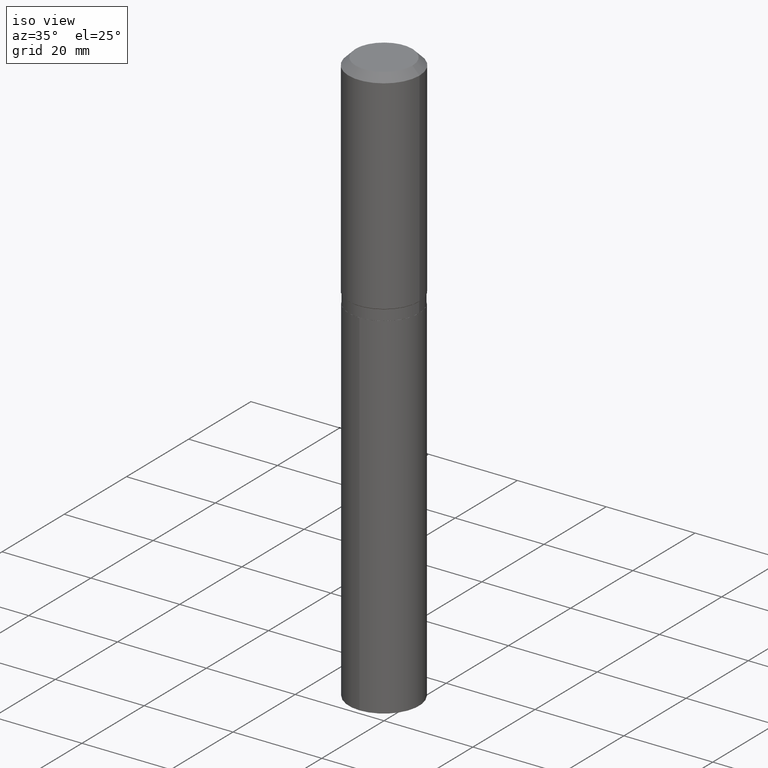
[diagram: clean part render]
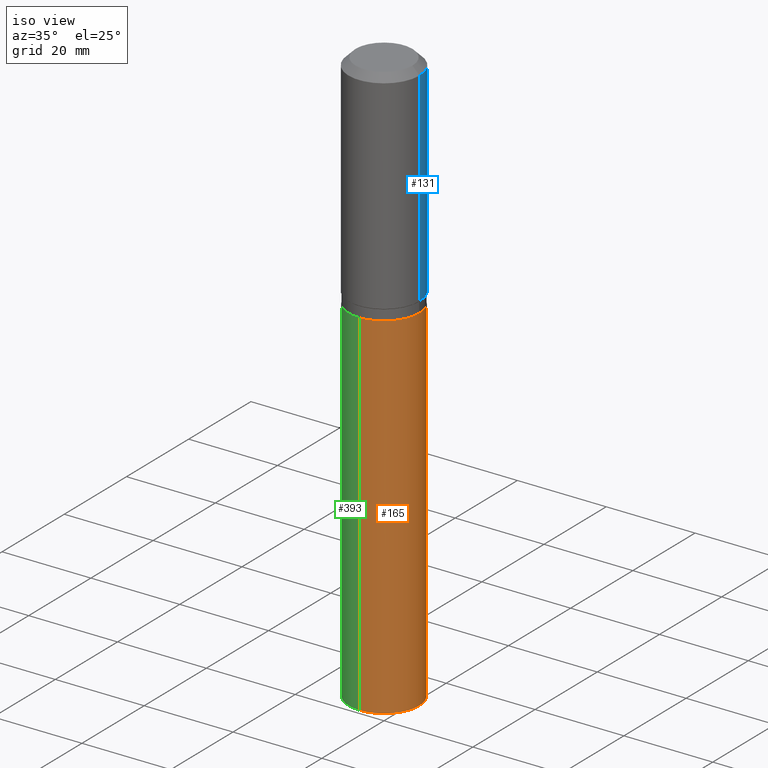
[diagram: same view with three faces highlighted in distinct colors, each labeled with its STEP entity id]
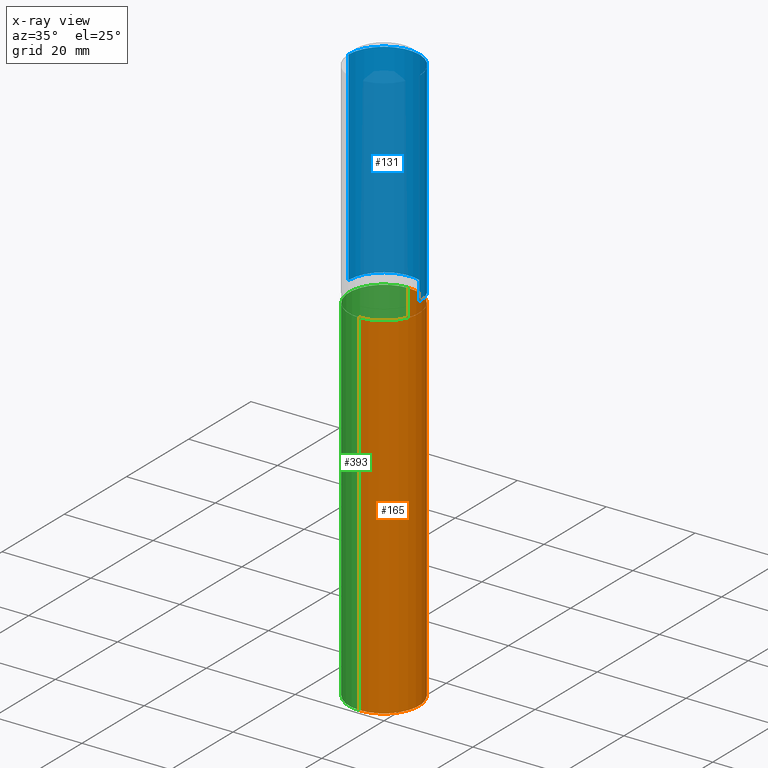
[diagram: x-ray of the same camera — body ghosted, the three highlighted faces saturated]
A machine part, iso view with three faces highlighted in distinct colors.
The next image is the same camera in x-ray (body ghosted, the three faces saturated) — at least one of them is partly hidden behind the body in this view.
Their STEP definitions:

[orange] entity #165 — the highlighted cylindrical surface (partial cylindrical patch) has radius 7.9007 mm, axis along (-0, 0, 1).
#30 = ORIENTED_EDGE ( 'NONE', *, *, #144, .T. ) ;
#38 = VERTEX_POINT ( 'NONE', #134 ) ;
#46 = EDGE_CURVE ( 'NONE', #38, #117, #318, .T. ) ;
#48 = DIRECTION ( 'NONE',  ( -2.445324435619551489E-29, 3.491688085710125580E-15, 1.000000000000000000 ) ) ;
#61 = CARTESIAN_POINT ( 'NONE',  ( -2.172050540894265111E-15, -0.3110500000000069321, -1.968299999999998162 ) ) ;
#69 = CARTESIAN_POINT ( 'NONE',  ( 4.813416251214202584E-29, -6.872282719244960739E-15, -1.968299999999999272 ) ) ;
#78 = ORIENTED_EDGE ( 'NONE', *, *, #460, .T. ) ;
#100 = CARTESIAN_POINT ( 'NONE',  ( 1.250438744607617227E-28, -1.785424981427193522E-14, -5.113474146559972233 ) ) ;
#103 = EDGE_LOOP ( 'NONE', ( #30, #78, #366, #319 ) ) ;
#111 = VECTOR ( 'NONE', #313, 39.37007874015748143 ) ;
#117 = VERTEX_POINT ( 'NONE', #321 ) ;
#134 = CARTESIAN_POINT ( 'NONE',  ( -2.172050540894188197E-15, -0.3110500000000178678, -5.113474146559971345 ) ) ;
#144 = EDGE_CURVE ( 'NONE', #38, #369, #204, .T. ) ;
#165 = ADVANCED_FACE ( 'NONE', ( #439 ), #258, .T. ) ;
#180 = VECTOR ( 'NONE', #383, 39.37007874015748143 ) ;
#200 = CARTESIAN_POINT ( 'NONE',  ( 2.210143179581839306E-15, 0.3110499999999931098, -1.968300000000000383 ) ) ;
#203 = VERTEX_POINT ( 'NONE', #367 ) ;
#204 = CIRCLE ( 'NONE', #228, 0.3110499999999999932 ) ;
#221 = DIRECTION ( 'NONE',  ( -2.445324435619551489E-29, 3.491688085710125580E-15, 1.000000000000000000 ) ) ;
#227 = DIRECTION ( 'NONE',  ( -6.982962677686266711E-15, -1.000000000000000000, 3.513066058401238903E-15 ) ) ;
#228 = AXIS2_PLACEMENT_3D ( 'NONE', #100, #245, #395 ) ;
#235 = LINE ( 'NONE', #200, #180 ) ;
#245 = DIRECTION ( 'NONE',  ( -2.445324435619551489E-29, 3.491688085710125580E-15, 1.000000000000000000 ) ) ;
#258 = CYLINDRICAL_SURFACE ( 'NONE', #423, 0.3110499999999999932 ) ;
#260 = CIRCLE ( 'NONE', #324, 0.3110499999999999932 ) ;
#303 = EDGE_CURVE ( 'NONE', #117, #203, #260, .T. ) ;
#313 = DIRECTION ( 'NONE',  ( -2.445324435619551208E-29, 3.491688085710125580E-15, 1.000000000000000000 ) ) ;
#318 = LINE ( 'NONE', #61, #111 ) ;
#319 = ORIENTED_EDGE ( 'NONE', *, *, #46, .F. ) ;
#321 = CARTESIAN_POINT ( 'NONE',  ( -2.172050540894265111E-15, -0.3110500000000069321, -1.968299999999998162 ) ) ;
#324 = AXIS2_PLACEMENT_3D ( 'NONE', #420, #48, #343 ) ;
#343 = DIRECTION ( 'NONE',  ( -6.982962677686266711E-15, -1.000000000000000000, 3.513066058401238903E-15 ) ) ;
#366 = ORIENTED_EDGE ( 'NONE', *, *, #303, .F. ) ;
#367 = CARTESIAN_POINT ( 'NONE',  ( 2.210143179581916614E-15, 0.3110499999999931098, -1.968300000000000383 ) ) ;
#369 = VERTEX_POINT ( 'NONE', #376 ) ;
#376 = CARTESIAN_POINT ( 'NONE',  ( 2.210143179581917008E-15, 0.3110499999999822851, -5.113474146559974010 ) ) ;
#383 = DIRECTION ( 'NONE',  ( -2.445324435619551208E-29, 3.491688085710125580E-15, 1.000000000000000000 ) ) ;
#395 = DIRECTION ( 'NONE',  ( -6.982962677686266711E-15, -1.000000000000000000, 3.513066058401238903E-15 ) ) ;
#420 = CARTESIAN_POINT ( 'NONE',  ( 4.813416251214202584E-29, -6.872282719244960739E-15, -1.968299999999999272 ) ) ;
#423 = AXIS2_PLACEMENT_3D ( 'NONE', #69, #221, #227 ) ;
#439 = FACE_OUTER_BOUND ( 'NONE', #103, .T. ) ;
#460 = EDGE_CURVE ( 'NONE', #369, #203, #235, .T. ) ;

[blue] entity #131 — the highlighted cylindrical surface (partial cylindrical patch) has radius 7.9997 mm, axis along (-0, 0, 1).
#5 = LINE ( 'NONE', #118, #153 ) ;
#40 = AXIS2_PLACEMENT_3D ( 'NONE', #444, #489, #104 ) ;
#57 = EDGE_LOOP ( 'NONE', ( #142, #59, #105, #146 ) ) ;
#59 = ORIENTED_EDGE ( 'NONE', *, *, #396, .T. ) ;
#79 = CIRCLE ( 'NONE', #128, 0.3149500000000000077 ) ;
#80 = DIRECTION ( 'NONE',  ( -2.445468806185136877E-29, 3.491481338843145188E-15, 1.000000000000000000 ) ) ;
#83 = CARTESIAN_POINT ( 'NONE',  ( 0.3149500000000002298, -8.731147384045044792E-15, -1.870799999999999352 ) ) ;
#97 = CARTESIAN_POINT ( 'NONE',  ( 0.3149500000000001743, -2.199284095337290660E-15, 1.535751875536930690E-29 ) ) ;
#102 = DIRECTION ( 'NONE',  ( 1.000000000000000000, -6.982962677686266711E-15, 0.000000000000000000 ) ) ;
#104 = DIRECTION ( 'NONE',  ( 1.000000000000000000, -6.982962677686264344E-15, 0.000000000000000000 ) ) ;
#105 = ORIENTED_EDGE ( 'NONE', *, *, #198, .F. ) ;
#112 = VECTOR ( 'NONE', #320, 39.37007874015748143 ) ;
#118 = CARTESIAN_POINT ( 'NONE',  ( -0.3149500000000001743, 2.237854346276436774E-15, -1.549218606675783237E-29 ) ) ;
#128 = AXIS2_PLACEMENT_3D ( 'NONE', #326, #373, #102 ) ;
#131 = ADVANCED_FACE ( 'NONE', ( #279 ), #136, .T. ) ;
#136 = CYLINDRICAL_SURFACE ( 'NONE', #172, 0.3149500000000001743 ) ;
#142 = ORIENTED_EDGE ( 'NONE', *, *, #274, .T. ) ;
#146 = ORIENTED_EDGE ( 'NONE', *, *, #422, .F. ) ;
#153 = VECTOR ( 'NONE', #80, 39.37007874015748143 ) ;
#172 = AXIS2_PLACEMENT_3D ( 'NONE', #428, #287, #477 ) ;
#177 = LINE ( 'NONE', #97, #112 ) ;
#198 = EDGE_CURVE ( 'NONE', #340, #394, #79, .T. ) ;
#255 = CIRCLE ( 'NONE', #40, 0.3149500000000002298 ) ;
#265 = VERTEX_POINT ( 'NONE', #334 ) ;
#274 = EDGE_CURVE ( 'NONE', #475, #265, #255, .T. ) ;
#279 = FACE_OUTER_BOUND ( 'NONE', #57, .T. ) ;
#287 = DIRECTION ( 'NONE',  ( -2.445468806185136597E-29, 3.491481338843145583E-15, 1.000000000000000000 ) ) ;
#320 = DIRECTION ( 'NONE',  ( -2.445468806185136877E-29, 3.491481338843145188E-15, 1.000000000000000000 ) ) ;
#326 = CARTESIAN_POINT ( 'NONE',  ( 1.540400801016026329E-30, -2.199284095337310135E-16, -0.06299000000000036514 ) ) ;
#334 = CARTESIAN_POINT ( 'NONE',  ( -0.3149500000000002298, -4.294008942431317359E-15, -1.870799999999999352 ) ) ;
#340 = VERTEX_POINT ( 'NONE', #344 ) ;
#341 = CARTESIAN_POINT ( 'NONE',  ( -0.3149500000000000077, -1.138041502844306206E-15, -0.06299000000000036514 ) ) ;
#344 = CARTESIAN_POINT ( 'NONE',  ( 0.3149500000000000077, -2.419212504871020909E-15, -0.06299000000000036514 ) ) ;
#373 = DIRECTION ( 'NONE',  ( -2.445468806185136597E-29, 3.491481338843145583E-15, 1.000000000000000000 ) ) ;
#394 = VERTEX_POINT ( 'NONE', #341 ) ;
#396 = EDGE_CURVE ( 'NONE', #265, #394, #5, .T. ) ;
#422 = EDGE_CURVE ( 'NONE', #475, #340, #177, .T. ) ;
#428 = CARTESIAN_POINT ( 'NONE',  ( 0.000000000000000000, 0.000000000000000000, 0.000000000000000000 ) ) ;
#444 = CARTESIAN_POINT ( 'NONE',  ( 4.574983042611151699E-29, -6.531863288707754922E-15, -1.870799999999999352 ) ) ;
#475 = VERTEX_POINT ( 'NONE', #83 ) ;
#477 = DIRECTION ( 'NONE',  ( 1.000000000000000000, -6.982962677686265922E-15, 4.876176775795935232E-29 ) ) ;
#489 = DIRECTION ( 'NONE',  ( -2.445468806185136597E-29, 3.491481338843145583E-15, 1.000000000000000000 ) ) ;

[green] entity #393 — the highlighted cylindrical surface (partial cylindrical patch) has radius 7.9007 mm, axis along (-0, 0, 1).
#26 = DIRECTION ( 'NONE',  ( -2.445324435619551489E-29, 3.491688085710125580E-15, 1.000000000000000000 ) ) ;
#31 = AXIS2_PLACEMENT_3D ( 'NONE', #65, #26, #403 ) ;
#38 = VERTEX_POINT ( 'NONE', #134 ) ;
#46 = EDGE_CURVE ( 'NONE', #38, #117, #318, .T. ) ;
#50 = AXIS2_PLACEMENT_3D ( 'NONE', #85, #346, #154 ) ;
#61 = CARTESIAN_POINT ( 'NONE',  ( -2.172050540894265111E-15, -0.3110500000000069321, -1.968299999999998162 ) ) ;
#65 = CARTESIAN_POINT ( 'NONE',  ( 4.813416251214202584E-29, -6.872282719244960739E-15, -1.968299999999999272 ) ) ;
#70 = ORIENTED_EDGE ( 'NONE', *, *, #168, .F. ) ;
#76 = FACE_OUTER_BOUND ( 'NONE', #114, .T. ) ;
#85 = CARTESIAN_POINT ( 'NONE',  ( 1.250438744607617227E-28, -1.785424981427193522E-14, -5.113474146559972233 ) ) ;
#111 = VECTOR ( 'NONE', #313, 39.37007874015748143 ) ;
#114 = EDGE_LOOP ( 'NONE', ( #429, #229, #371, #70 ) ) ;
#117 = VERTEX_POINT ( 'NONE', #321 ) ;
#130 = AXIS2_PLACEMENT_3D ( 'NONE', #233, #378, #196 ) ;
#134 = CARTESIAN_POINT ( 'NONE',  ( -2.172050540894188197E-15, -0.3110500000000178678, -5.113474146559971345 ) ) ;
#154 = DIRECTION ( 'NONE',  ( -6.982962677686266711E-15, -1.000000000000000000, 3.513066058401238903E-15 ) ) ;
#168 = EDGE_CURVE ( 'NONE', #203, #117, #286, .T. ) ;
#180 = VECTOR ( 'NONE', #383, 39.37007874015748143 ) ;
#196 = DIRECTION ( 'NONE',  ( -6.982962677686266711E-15, -1.000000000000000000, 3.513066058401238903E-15 ) ) ;
#200 = CARTESIAN_POINT ( 'NONE',  ( 2.210143179581839306E-15, 0.3110499999999931098, -1.968300000000000383 ) ) ;
#203 = VERTEX_POINT ( 'NONE', #367 ) ;
#229 = ORIENTED_EDGE ( 'NONE', *, *, #365, .T. ) ;
#233 = CARTESIAN_POINT ( 'NONE',  ( 4.813416251214202584E-29, -6.872282719244960739E-15, -1.968299999999999272 ) ) ;
#235 = LINE ( 'NONE', #200, #180 ) ;
#286 = CIRCLE ( 'NONE', #31, 0.3110499999999999932 ) ;
#313 = DIRECTION ( 'NONE',  ( -2.445324435619551208E-29, 3.491688085710125580E-15, 1.000000000000000000 ) ) ;
#318 = LINE ( 'NONE', #61, #111 ) ;
#321 = CARTESIAN_POINT ( 'NONE',  ( -2.172050540894265111E-15, -0.3110500000000069321, -1.968299999999998162 ) ) ;
#346 = DIRECTION ( 'NONE',  ( -2.445324435619551489E-29, 3.491688085710125580E-15, 1.000000000000000000 ) ) ;
#365 = EDGE_CURVE ( 'NONE', #369, #38, #443, .T. ) ;
#367 = CARTESIAN_POINT ( 'NONE',  ( 2.210143179581916614E-15, 0.3110499999999931098, -1.968300000000000383 ) ) ;
#369 = VERTEX_POINT ( 'NONE', #376 ) ;
#371 = ORIENTED_EDGE ( 'NONE', *, *, #46, .T. ) ;
#376 = CARTESIAN_POINT ( 'NONE',  ( 2.210143179581917008E-15, 0.3110499999999822851, -5.113474146559974010 ) ) ;
#378 = DIRECTION ( 'NONE',  ( -2.445324435619551489E-29, 3.491688085710125580E-15, 1.000000000000000000 ) ) ;
#383 = DIRECTION ( 'NONE',  ( -2.445324435619551208E-29, 3.491688085710125580E-15, 1.000000000000000000 ) ) ;
#393 = ADVANCED_FACE ( 'NONE', ( #76 ), #455, .T. ) ;
#403 = DIRECTION ( 'NONE',  ( -6.982962677686266711E-15, -1.000000000000000000, 3.513066058401238903E-15 ) ) ;
#429 = ORIENTED_EDGE ( 'NONE', *, *, #460, .F. ) ;
#443 = CIRCLE ( 'NONE', #50, 0.3110499999999999932 ) ;
#455 = CYLINDRICAL_SURFACE ( 'NONE', #130, 0.3110499999999999932 ) ;
#460 = EDGE_CURVE ( 'NONE', #369, #203, #235, .T. ) ;